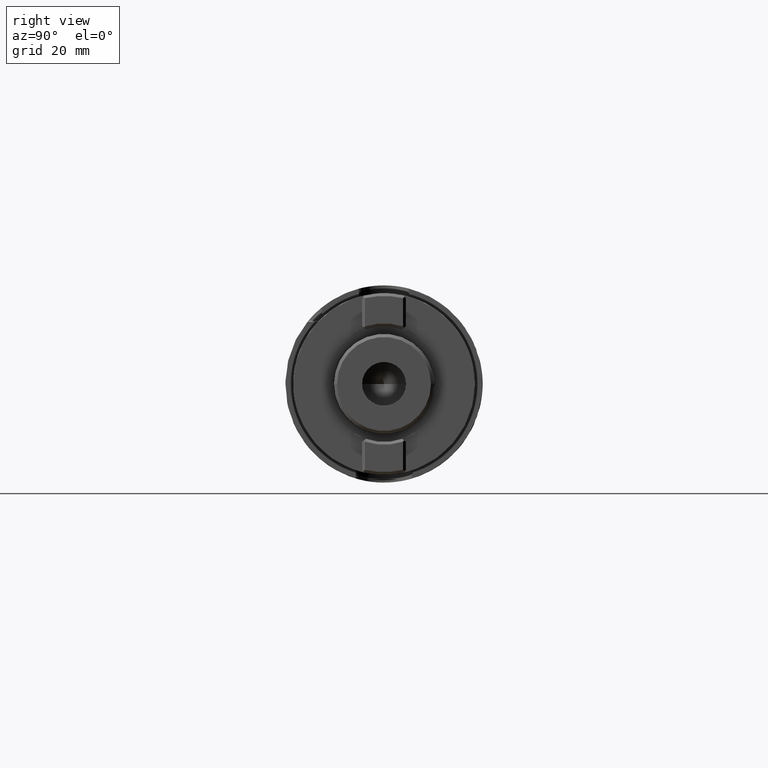
[diagram: clean part render]
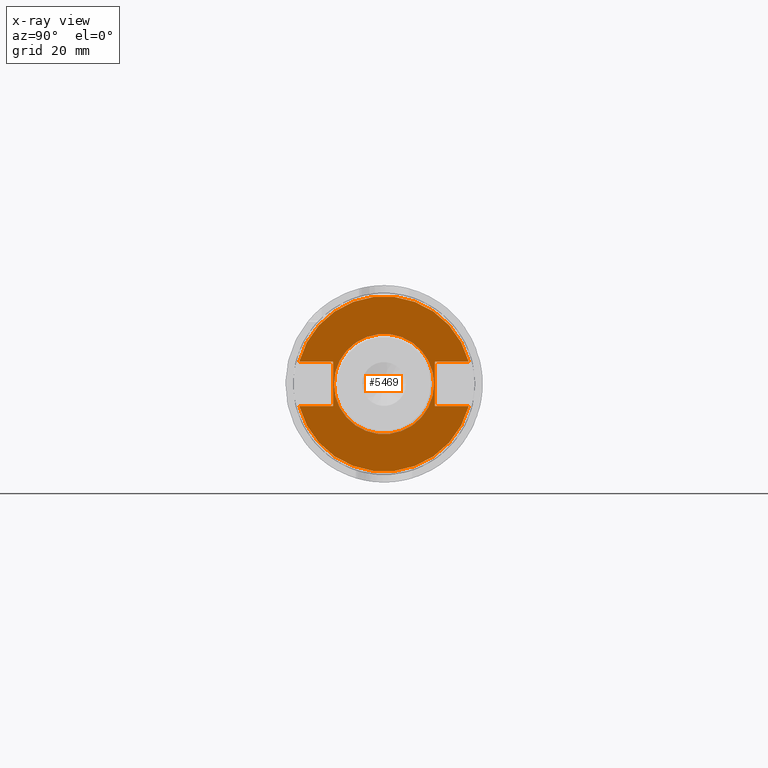
[diagram: x-ray — body ghosted, one internal face saturated and labeled with its STEP entity id]
A machine part, right view, then the same camera in x-ray: the body is ghosted and one INTERNAL B-rep face — a face not visible from any outside direction — is saturated and labeled: STEP entity #5469.
In plain terms, the highlighted planar face has unit normal (1, 0, 0).
Its self-contained STEP definition (entity closure, byte-faithful):
#1681=CARTESIAN_POINT('',(1.46E2,0.E0,0.E0));
#1682=DIRECTION('',(1.E0,0.E0,0.E0));
#1683=DIRECTION('',(0.E0,9.677830098124E-1,2.517857142857E-1));
#1684=AXIS2_PLACEMENT_3D('',#1681,#1682,#1683);
#1699=CARTESIAN_POINT('',(1.46E2,0.E0,0.E0));
#1700=DIRECTION('',(1.E0,0.E0,0.E0));
#1701=DIRECTION('',(0.E0,-9.677830098124E-1,-2.517857142857E-1));
#1702=AXIS2_PLACEMENT_3D('',#1699,#1700,#1701);
#1721=CARTESIAN_POINT('',(1.46E2,0.E0,0.E0));
#1722=DIRECTION('',(1.E0,0.E0,0.E0));
#1723=DIRECTION('',(0.E0,1.E0,0.E0));
#1724=AXIS2_PLACEMENT_3D('',#1721,#1722,#1723);
#1726=CARTESIAN_POINT('',(1.46E2,0.E0,0.E0));
#1727=DIRECTION('',(-1.E0,0.E0,0.E0));
#1728=DIRECTION('',(0.E0,1.E0,0.E0));
#1729=AXIS2_PLACEMENT_3D('',#1726,#1727,#1728);
#1731=DIRECTION('',(0.E0,0.E0,-1.E0));
#1732=VECTOR('',#1731,1.41E1);
#1733=CARTESIAN_POINT('',(1.46E2,-1.625E1,7.05E0));
#1734=LINE('',#1733,#1732);
#1735=DIRECTION('',(0.E0,1.E0,0.E0));
#1736=VECTOR('',#1735,1.084792427475E1);
#1737=CARTESIAN_POINT('',(1.46E2,-2.709792427475E1,7.05E0));
#1738=LINE('',#1737,#1736);
#1739=DIRECTION('',(0.E0,-1.E0,0.E0));
#1740=VECTOR('',#1739,1.084792427475E1);
#1741=CARTESIAN_POINT('',(1.46E2,2.709792427475E1,7.05E0));
#1742=LINE('',#1741,#1740);
#1743=DIRECTION('',(0.E0,0.E0,-1.E0));
#1744=VECTOR('',#1743,1.41E1);
#1745=CARTESIAN_POINT('',(1.46E2,1.625E1,7.05E0));
#1746=LINE('',#1745,#1744);
#1747=DIRECTION('',(0.E0,-1.E0,0.E0));
#1748=VECTOR('',#1747,1.084792427475E1);
#1749=CARTESIAN_POINT('',(1.46E2,2.709792427475E1,-7.05E0));
#1750=LINE('',#1749,#1748);
#1751=DIRECTION('',(0.E0,1.E0,0.E0));
#1752=VECTOR('',#1751,1.084792427475E1);
#1753=CARTESIAN_POINT('',(1.46E2,-2.709792427475E1,-7.05E0));
#1754=LINE('',#1753,#1752);
#3487=CARTESIAN_POINT('',(1.46E2,1.6E1,0.E0));
#3488=CARTESIAN_POINT('',(1.46E2,-1.6E1,0.E0));
#3489=VERTEX_POINT('',#3487);
#3490=VERTEX_POINT('',#3488);
#3513=CARTESIAN_POINT('',(1.46E2,1.625E1,7.05E0));
#3514=CARTESIAN_POINT('',(1.46E2,1.625E1,-7.05E0));
#3515=VERTEX_POINT('',#3513);
#3516=VERTEX_POINT('',#3514);
#3517=CARTESIAN_POINT('',(1.46E2,2.709792427475E1,7.05E0));
#3518=VERTEX_POINT('',#3517);
#3519=CARTESIAN_POINT('',(1.46E2,2.709792427475E1,-7.05E0));
#3520=VERTEX_POINT('',#3519);
#3532=CARTESIAN_POINT('',(1.46E2,-1.625E1,7.05E0));
#3533=VERTEX_POINT('',#3532);
#3534=CARTESIAN_POINT('',(1.46E2,-1.625E1,-7.05E0));
#3535=VERTEX_POINT('',#3534);
#3540=CARTESIAN_POINT('',(1.46E2,-2.709792427475E1,7.05E0));
#3541=VERTEX_POINT('',#3540);
#3542=CARTESIAN_POINT('',(1.46E2,-2.709792427475E1,-7.05E0));
#3543=VERTEX_POINT('',#3542);
#5446=CARTESIAN_POINT('',(1.46E2,0.E0,0.E0));
#5447=DIRECTION('',(1.E0,0.E0,0.E0));
#5448=DIRECTION('',(0.E0,-1.E0,0.E0));
#5449=AXIS2_PLACEMENT_3D('',#5446,#5447,#5448);
#5450=PLANE('',#5449);
#5451=ORIENTED_EDGE('',*,*,#5380,.F.);
#5452=ORIENTED_EDGE('',*,*,#5397,.F.);
#5453=ORIENTED_EDGE('',*,*,#5411,.F.);
#5454=ORIENTED_EDGE('',*,*,#5435,.T.);
#5456=ORIENTED_EDGE('',*,*,#5455,.T.);
#5458=ORIENTED_EDGE('',*,*,#5457,.F.);
#5459=ORIENTED_EDGE('',*,*,#5422,.F.);
#5460=ORIENTED_EDGE('',*,*,#5364,.T.);
#5461=EDGE_LOOP('',(#5451,#5452,#5453,#5454,#5456,#5458,#5459,#5460));
#5462=FACE_OUTER_BOUND('',#5461,.F.);
#5464=ORIENTED_EDGE('',*,*,#5463,.T.);
#5466=ORIENTED_EDGE('',*,*,#5465,.F.);
#5467=EDGE_LOOP('',(#5464,#5466));
#5468=FACE_BOUND('',#5467,.F.);
#5469=ADVANCED_FACE('',(#5462,#5468),#5450,.T.);
#1685=CIRCLE('',#1684,2.8E1);
#1703=CIRCLE('',#1702,2.8E1);
#1725=CIRCLE('',#1724,1.6E1);
#1730=CIRCLE('',#1729,1.6E1);
#5364=EDGE_CURVE('',#3543,#3535,#1754,.T.);
#5380=EDGE_CURVE('',#3533,#3535,#1734,.T.);
#5397=EDGE_CURVE('',#3541,#3533,#1738,.T.);
#5411=EDGE_CURVE('',#3518,#3541,#1685,.T.);
#5422=EDGE_CURVE('',#3543,#3520,#1703,.T.);
#5435=EDGE_CURVE('',#3518,#3515,#1742,.T.);
#5455=EDGE_CURVE('',#3515,#3516,#1746,.T.);
#5457=EDGE_CURVE('',#3520,#3516,#1750,.T.);
#5463=EDGE_CURVE('',#3489,#3490,#1725,.T.);
#5465=EDGE_CURVE('',#3489,#3490,#1730,.T.);